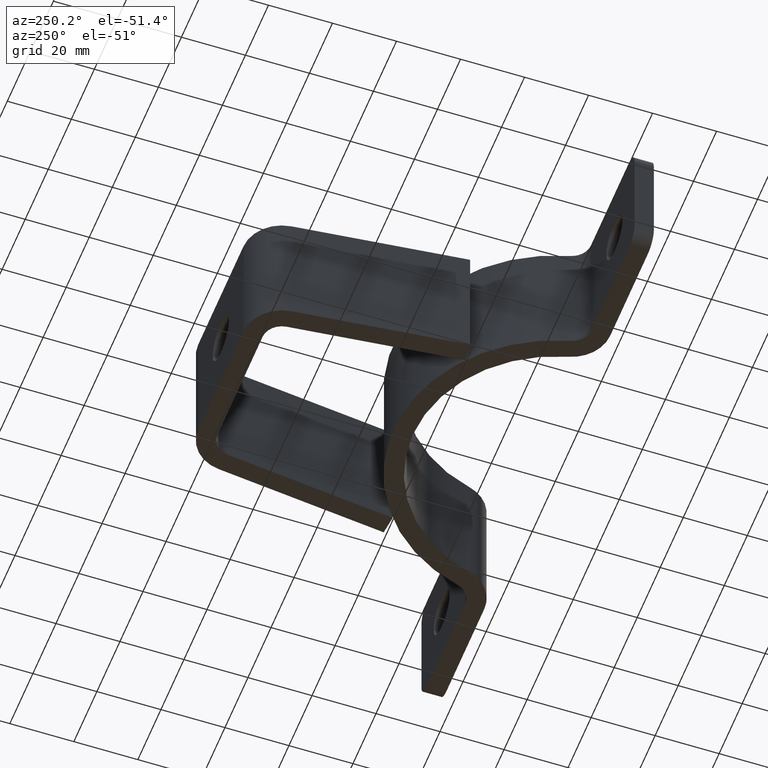
[diagram: clean part render]
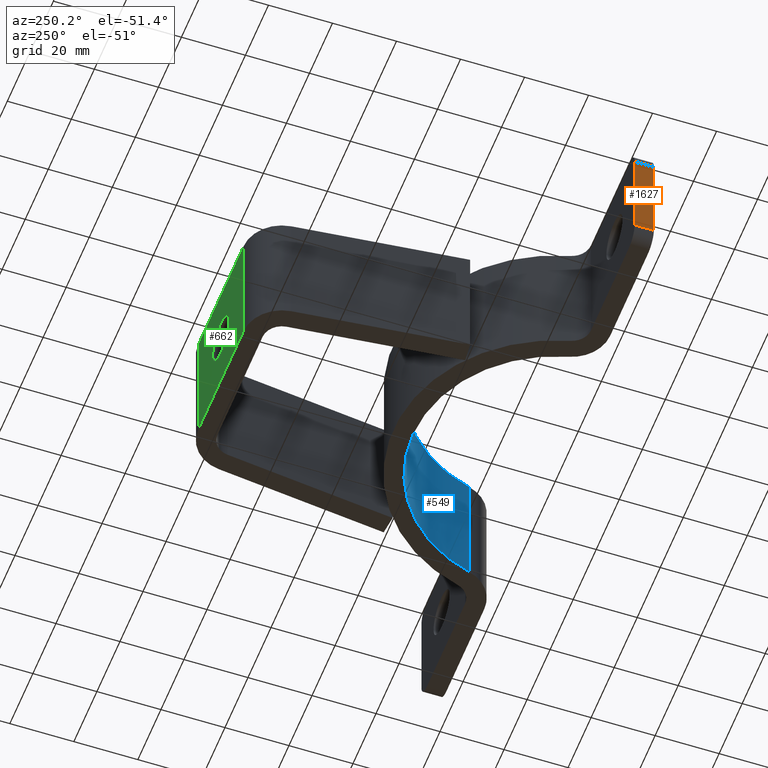
[diagram: same view with three faces highlighted in distinct colors, each labeled with its STEP entity id]
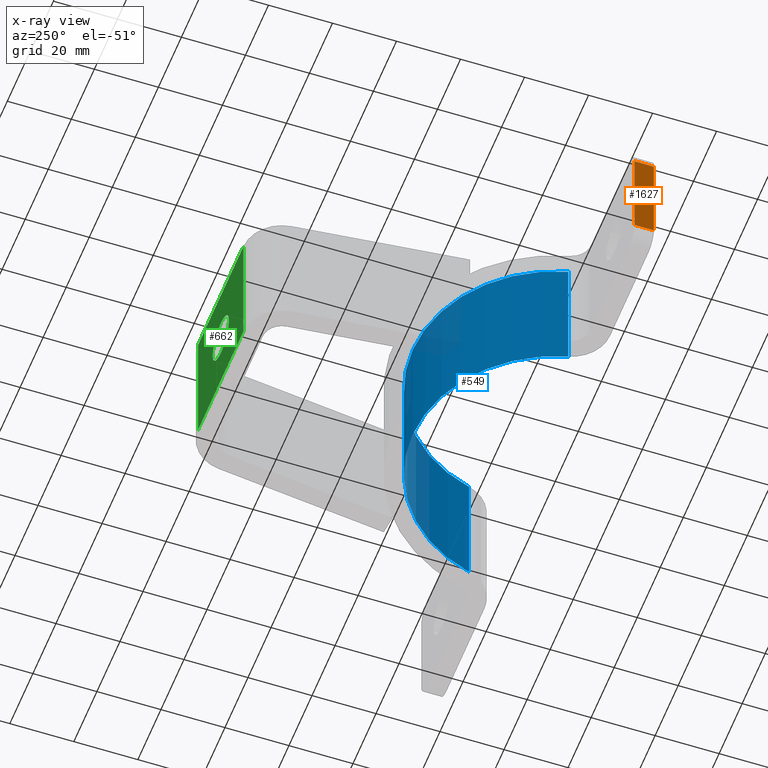
[diagram: x-ray of the same camera — body ghosted, the three highlighted faces saturated]
A machine part, auxiliary view with three faces highlighted in distinct colors.
The next image is the same camera in x-ray (body ghosted, the three faces saturated) — at least one of them is partly hidden behind the body in this view.
Their STEP definitions:

[orange] entity #1627 — the highlighted planar face has unit normal (-1, -0, 0).
#34 = DIRECTION ( 'NONE',  ( -1.000000000000000000, -4.440892098500626162E-16, 0.000000000000000000 ) ) ;
#41 = VECTOR ( 'NONE', #206, 1000.000000000000000 ) ;
#67 = CARTESIAN_POINT ( 'NONE',  ( -92.50000000000008527, 8.499999999999507949, -14.99999999999990230 ) ) ;
#97 = EDGE_LOOP ( 'NONE', ( #1375, #500, #317, #1720 ) ) ;
#107 = EDGE_CURVE ( 'NONE', #1339, #815, #1474, .T. ) ;
#143 = EDGE_CURVE ( 'NONE', #1746, #1442, #1452, .T. ) ;
#154 = AXIS2_PLACEMENT_3D ( 'NONE', #1684, #34, #289 ) ;
#203 = DIRECTION ( 'NONE',  ( 0.000000000000000000, 0.000000000000000000, -1.000000000000000000 ) ) ;
#206 = DIRECTION ( 'NONE',  ( 0.000000000000000000, 0.000000000000000000, -1.000000000000000000 ) ) ;
#289 = DIRECTION ( 'NONE',  ( 0.000000000000000000, 0.000000000000000000, 1.000000000000000000 ) ) ;
#305 = LINE ( 'NONE', #1180, #41 ) ;
#317 = ORIENTED_EDGE ( 'NONE', *, *, #1728, .F. ) ;
#355 = CARTESIAN_POINT ( 'NONE',  ( -92.50000000000008527, 2.499999999999502620, -14.99999999999990230 ) ) ;
#485 = LINE ( 'NONE', #907, #832 ) ;
#500 = ORIENTED_EDGE ( 'NONE', *, *, #107, .T. ) ;
#569 = VECTOR ( 'NONE', #1174, 1000.000000000000000 ) ;
#618 = CARTESIAN_POINT ( 'NONE',  ( -92.50000000000008527, 2.499999999999502620, -14.99999999999990230 ) ) ;
#728 = FACE_OUTER_BOUND ( 'NONE', #97, .T. ) ;
#815 = VERTEX_POINT ( 'NONE', #618 ) ;
#832 = VECTOR ( 'NONE', #203, 1000.000000000000000 ) ;
#844 = EDGE_CURVE ( 'NONE', #1442, #1339, #485, .T. ) ;
#864 = VECTOR ( 'NONE', #913, 1000.000000000000000 ) ;
#907 = CARTESIAN_POINT ( 'NONE',  ( -92.50000000000008527, 8.499999999999507949, 20.00000000000001776 ) ) ;
#913 = DIRECTION ( 'NONE',  ( -4.440892098500623203E-16, -1.000000000000000000, -0.000000000000000000 ) ) ;
#927 = CARTESIAN_POINT ( 'NONE',  ( -92.50000000000008527, 2.499999999999502620, 14.99999999999990230 ) ) ;
#1061 = CARTESIAN_POINT ( 'NONE',  ( -92.50000000000008527, 2.499999999999502620, 14.99999999999990230 ) ) ;
#1174 = DIRECTION ( 'NONE',  ( 4.440892098500623203E-16, 1.000000000000000000, 0.000000000000000000 ) ) ;
#1180 = CARTESIAN_POINT ( 'NONE',  ( -92.50000000000008527, 2.499999999999502620, 20.00000000000001776 ) ) ;
#1269 = PLANE ( 'NONE',  #154 ) ;
#1339 = VERTEX_POINT ( 'NONE', #67 ) ;
#1375 = ORIENTED_EDGE ( 'NONE', *, *, #844, .T. ) ;
#1377 = CARTESIAN_POINT ( 'NONE',  ( -92.50000000000008527, 8.499999999999507949, 14.99999999999990230 ) ) ;
#1442 = VERTEX_POINT ( 'NONE', #1377 ) ;
#1452 = LINE ( 'NONE', #927, #569 ) ;
#1474 = LINE ( 'NONE', #355, #864 ) ;
#1627 = ADVANCED_FACE ( 'NONE', ( #728 ), #1269, .T. ) ;
#1684 = CARTESIAN_POINT ( 'NONE',  ( -92.50000000000008527, 2.499999999999502620, 20.00000000000001776 ) ) ;
#1720 = ORIENTED_EDGE ( 'NONE', *, *, #143, .T. ) ;
#1728 = EDGE_CURVE ( 'NONE', #1746, #815, #305, .T. ) ;
#1746 = VERTEX_POINT ( 'NONE', #1061 ) ;

[blue] entity #549 — the highlighted cylindrical surface (partial cylindrical patch) has radius 44.5 mm, axis along (0, 0, -1).
#131 = EDGE_CURVE ( 'NONE', #814, #1363, #1607, .T. ) ;
#134 = CARTESIAN_POINT ( 'NONE',  ( 0.000000000000000000, 0.000000000000000000, 20.00000000000001776 ) ) ;
#212 = CARTESIAN_POINT ( 'NONE',  ( 43.00959793951753340, 11.42035398230079046, 20.00000000000001776 ) ) ;
#215 = CARTESIAN_POINT ( 'NONE',  ( 43.00959793951753340, 11.42035398230079046, -20.00000000000001776 ) ) ;
#251 = VECTOR ( 'NONE', #1298, 1000.000000000000000 ) ;
#337 = LINE ( 'NONE', #1053, #595 ) ;
#392 = EDGE_CURVE ( 'NONE', #807, #1363, #337, .T. ) ;
#503 = CARTESIAN_POINT ( 'NONE',  ( -43.00959793951747656, 11.42035398230045828, 20.00000000000001776 ) ) ;
#515 = CARTESIAN_POINT ( 'NONE',  ( 0.000000000000000000, 0.000000000000000000, 20.00000000000001776 ) ) ;
#523 = CYLINDRICAL_SURFACE ( 'NONE', #1380, 44.50000000000006395 ) ;
#543 = CIRCLE ( 'NONE', #686, 44.50000000000006395 ) ;
#549 = ADVANCED_FACE ( 'NONE', ( #1763 ), #523, .F. ) ;
#563 = EDGE_CURVE ( 'NONE', #924, #807, #543, .T. ) ;
#595 = VECTOR ( 'NONE', #614, 1000.000000000000000 ) ;
#614 = DIRECTION ( 'NONE',  ( 0.000000000000000000, 0.000000000000000000, -1.000000000000000000 ) ) ;
#686 = AXIS2_PLACEMENT_3D ( 'NONE', #515, #1081, #963 ) ;
#751 = CARTESIAN_POINT ( 'NONE',  ( -43.00959793951747656, 11.42035398230045828, 20.00000000000001776 ) ) ;
#807 = VERTEX_POINT ( 'NONE', #212 ) ;
#810 = EDGE_CURVE ( 'NONE', #924, #814, #1315, .T. ) ;
#814 = VERTEX_POINT ( 'NONE', #1032 ) ;
#924 = VERTEX_POINT ( 'NONE', #503 ) ;
#963 = DIRECTION ( 'NONE',  ( -1.000000000000000000, -4.440892098500626162E-16, 0.000000000000000000 ) ) ;
#1032 = CARTESIAN_POINT ( 'NONE',  ( -43.00959793951747656, 11.42035398230045828, -20.00000000000001776 ) ) ;
#1053 = CARTESIAN_POINT ( 'NONE',  ( 43.00959793951753340, 11.42035398230079046, 20.00000000000001776 ) ) ;
#1066 = ORIENTED_EDGE ( 'NONE', *, *, #131, .T. ) ;
#1081 = DIRECTION ( 'NONE',  ( 0.000000000000000000, 0.000000000000000000, -1.000000000000000000 ) ) ;
#1132 = ORIENTED_EDGE ( 'NONE', *, *, #563, .F. ) ;
#1200 = DIRECTION ( 'NONE',  ( -1.000000000000000000, -4.440892098500626162E-16, 0.000000000000000000 ) ) ;
#1206 = EDGE_LOOP ( 'NONE', ( #1066, #1599, #1132, #1252 ) ) ;
#1252 = ORIENTED_EDGE ( 'NONE', *, *, #810, .T. ) ;
#1272 = AXIS2_PLACEMENT_3D ( 'NONE', #1312, #1737, #1200 ) ;
#1298 = DIRECTION ( 'NONE',  ( 0.000000000000000000, 0.000000000000000000, -1.000000000000000000 ) ) ;
#1312 = CARTESIAN_POINT ( 'NONE',  ( 0.000000000000000000, 0.000000000000000000, -20.00000000000001776 ) ) ;
#1315 = LINE ( 'NONE', #751, #251 ) ;
#1361 = DIRECTION ( 'NONE',  ( -1.000000000000000000, -4.440892098500626162E-16, 0.000000000000000000 ) ) ;
#1363 = VERTEX_POINT ( 'NONE', #215 ) ;
#1380 = AXIS2_PLACEMENT_3D ( 'NONE', #134, #1753, #1361 ) ;
#1599 = ORIENTED_EDGE ( 'NONE', *, *, #392, .F. ) ;
#1607 = CIRCLE ( 'NONE', #1272, 44.50000000000006395 ) ;
#1737 = DIRECTION ( 'NONE',  ( 0.000000000000000000, 0.000000000000000000, -1.000000000000000000 ) ) ;
#1753 = DIRECTION ( 'NONE',  ( 0.000000000000000000, 0.000000000000000000, -1.000000000000000000 ) ) ;
#1763 = FACE_OUTER_BOUND ( 'NONE', #1206, .T. ) ;

[green] entity #662 — the highlighted planar face has unit normal (0, -1, 0).
#19 = CARTESIAN_POINT ( 'NONE',  ( 0.000000000000000000, 104.5000000000000142, 0.000000000000000000 ) ) ;
#121 = ORIENTED_EDGE ( 'NONE', *, *, #690, .T. ) ;
#124 = AXIS2_PLACEMENT_3D ( 'NONE', #707, #159, #1114 ) ;
#138 = ORIENTED_EDGE ( 'NONE', *, *, #209, .T. ) ;
#159 = DIRECTION ( 'NONE',  ( 0.000000000000000000, -1.000000000000000000, 0.000000000000000000 ) ) ;
#163 = ORIENTED_EDGE ( 'NONE', *, *, #1436, .F. ) ;
#209 = EDGE_CURVE ( 'NONE', #1623, #1058, #534, .T. ) ;
#221 = DIRECTION ( 'NONE',  ( -0.000000000000000000, 1.000000000000000000, -0.000000000000000000 ) ) ;
#323 = VERTEX_POINT ( 'NONE', #1153 ) ;
#394 = VERTEX_POINT ( 'NONE', #878 ) ;
#441 = EDGE_CURVE ( 'NONE', #394, #323, #682, .T. ) ;
#455 = LINE ( 'NONE', #896, #836 ) ;
#464 = VERTEX_POINT ( 'NONE', #1027 ) ;
#469 = DIRECTION ( 'NONE',  ( -0.000000000000000000, 1.000000000000000000, -0.000000000000000000 ) ) ;
#534 = LINE ( 'NONE', #1249, #1576 ) ;
#556 = DIRECTION ( 'NONE',  ( 0.000000000000000000, 0.000000000000000000, 1.000000000000000000 ) ) ;
#577 = DIRECTION ( 'NONE',  ( -1.000000000000000000, 0.000000000000000000, -0.000000000000000000 ) ) ;
#643 = CARTESIAN_POINT ( 'NONE',  ( 19.62743464010925365, 104.5000000000000142, -20.00000000000000000 ) ) ;
#648 = DIRECTION ( 'NONE',  ( -0.000000000000000000, -0.000000000000000000, -1.000000000000000000 ) ) ;
#662 = ADVANCED_FACE ( 'NONE', ( #1267, #1259 ), #716, .F. ) ;
#682 = CIRCLE ( 'NONE', #1752, 6.999999999999987566 ) ;
#690 = EDGE_CURVE ( 'NONE', #1058, #464, #1276, .T. ) ;
#707 = CARTESIAN_POINT ( 'NONE',  ( 25.00000000000000000, 104.5000000000000142, 20.00000000000000000 ) ) ;
#716 = PLANE ( 'NONE',  #124 ) ;
#726 = CARTESIAN_POINT ( 'NONE',  ( 25.00000000000000000, 104.5000000000000142, -20.00000000000000000 ) ) ;
#754 = DIRECTION ( 'NONE',  ( 0.000000000000000000, 0.000000000000000000, 1.000000000000000000 ) ) ;
#798 = ORIENTED_EDGE ( 'NONE', *, *, #441, .F. ) ;
#836 = VECTOR ( 'NONE', #1446, 1000.000000000000000 ) ;
#854 = CARTESIAN_POINT ( 'NONE',  ( 19.62743464010925365, 104.5000000000000142, 20.00000000000000000 ) ) ;
#878 = CARTESIAN_POINT ( 'NONE',  ( 8.572527594031458399E-16, 104.5000000000000142, -6.999999999999988454 ) ) ;
#896 = CARTESIAN_POINT ( 'NONE',  ( -19.62743464010925010, 104.5000000000000000, 20.00000000000000000 ) ) ;
#945 = VECTOR ( 'NONE', #577, 1000.000000000000000 ) ;
#962 = EDGE_LOOP ( 'NONE', ( #121, #1304, #1071, #138 ) ) ;
#989 = CARTESIAN_POINT ( 'NONE',  ( 25.00000000000000000, 104.5000000000000142, 20.00000000000000000 ) ) ;
#1027 = CARTESIAN_POINT ( 'NONE',  ( -19.62743464010925010, 104.5000000000000000, -20.00000000000000000 ) ) ;
#1058 = VERTEX_POINT ( 'NONE', #643 ) ;
#1071 = ORIENTED_EDGE ( 'NONE', *, *, #1092, .F. ) ;
#1092 = EDGE_CURVE ( 'NONE', #1623, #1217, #1650, .T. ) ;
#1114 = DIRECTION ( 'NONE',  ( 0.000000000000000000, -0.000000000000000000, -1.000000000000000000 ) ) ;
#1153 = CARTESIAN_POINT ( 'NONE',  ( 0.000000000000000000, 104.5000000000000142, 6.999999999999987566 ) ) ;
#1217 = VERTEX_POINT ( 'NONE', #1514 ) ;
#1249 = CARTESIAN_POINT ( 'NONE',  ( 19.62743464010925365, 104.5000000000000142, 20.00000000000000000 ) ) ;
#1259 = FACE_OUTER_BOUND ( 'NONE', #962, .T. ) ;
#1267 = FACE_BOUND ( 'NONE', #1617, .T. ) ;
#1276 = LINE ( 'NONE', #726, #945 ) ;
#1304 = ORIENTED_EDGE ( 'NONE', *, *, #1353, .F. ) ;
#1353 = EDGE_CURVE ( 'NONE', #1217, #464, #455, .T. ) ;
#1436 = EDGE_CURVE ( 'NONE', #323, #394, #1696, .T. ) ;
#1446 = DIRECTION ( 'NONE',  ( -0.000000000000000000, -0.000000000000000000, -1.000000000000000000 ) ) ;
#1504 = DIRECTION ( 'NONE',  ( -1.000000000000000000, 0.000000000000000000, -0.000000000000000000 ) ) ;
#1514 = CARTESIAN_POINT ( 'NONE',  ( -19.62743464010925010, 104.5000000000000000, 20.00000000000000000 ) ) ;
#1556 = VECTOR ( 'NONE', #1504, 1000.000000000000000 ) ;
#1576 = VECTOR ( 'NONE', #648, 1000.000000000000000 ) ;
#1617 = EDGE_LOOP ( 'NONE', ( #163, #798 ) ) ;
#1623 = VERTEX_POINT ( 'NONE', #854 ) ;
#1650 = LINE ( 'NONE', #989, #1556 ) ;
#1696 = CIRCLE ( 'NONE', #1756, 6.999999999999987566 ) ;
#1736 = CARTESIAN_POINT ( 'NONE',  ( 0.000000000000000000, 104.5000000000000142, 0.000000000000000000 ) ) ;
#1752 = AXIS2_PLACEMENT_3D ( 'NONE', #1736, #469, #754 ) ;
#1756 = AXIS2_PLACEMENT_3D ( 'NONE', #19, #221, #556 ) ;